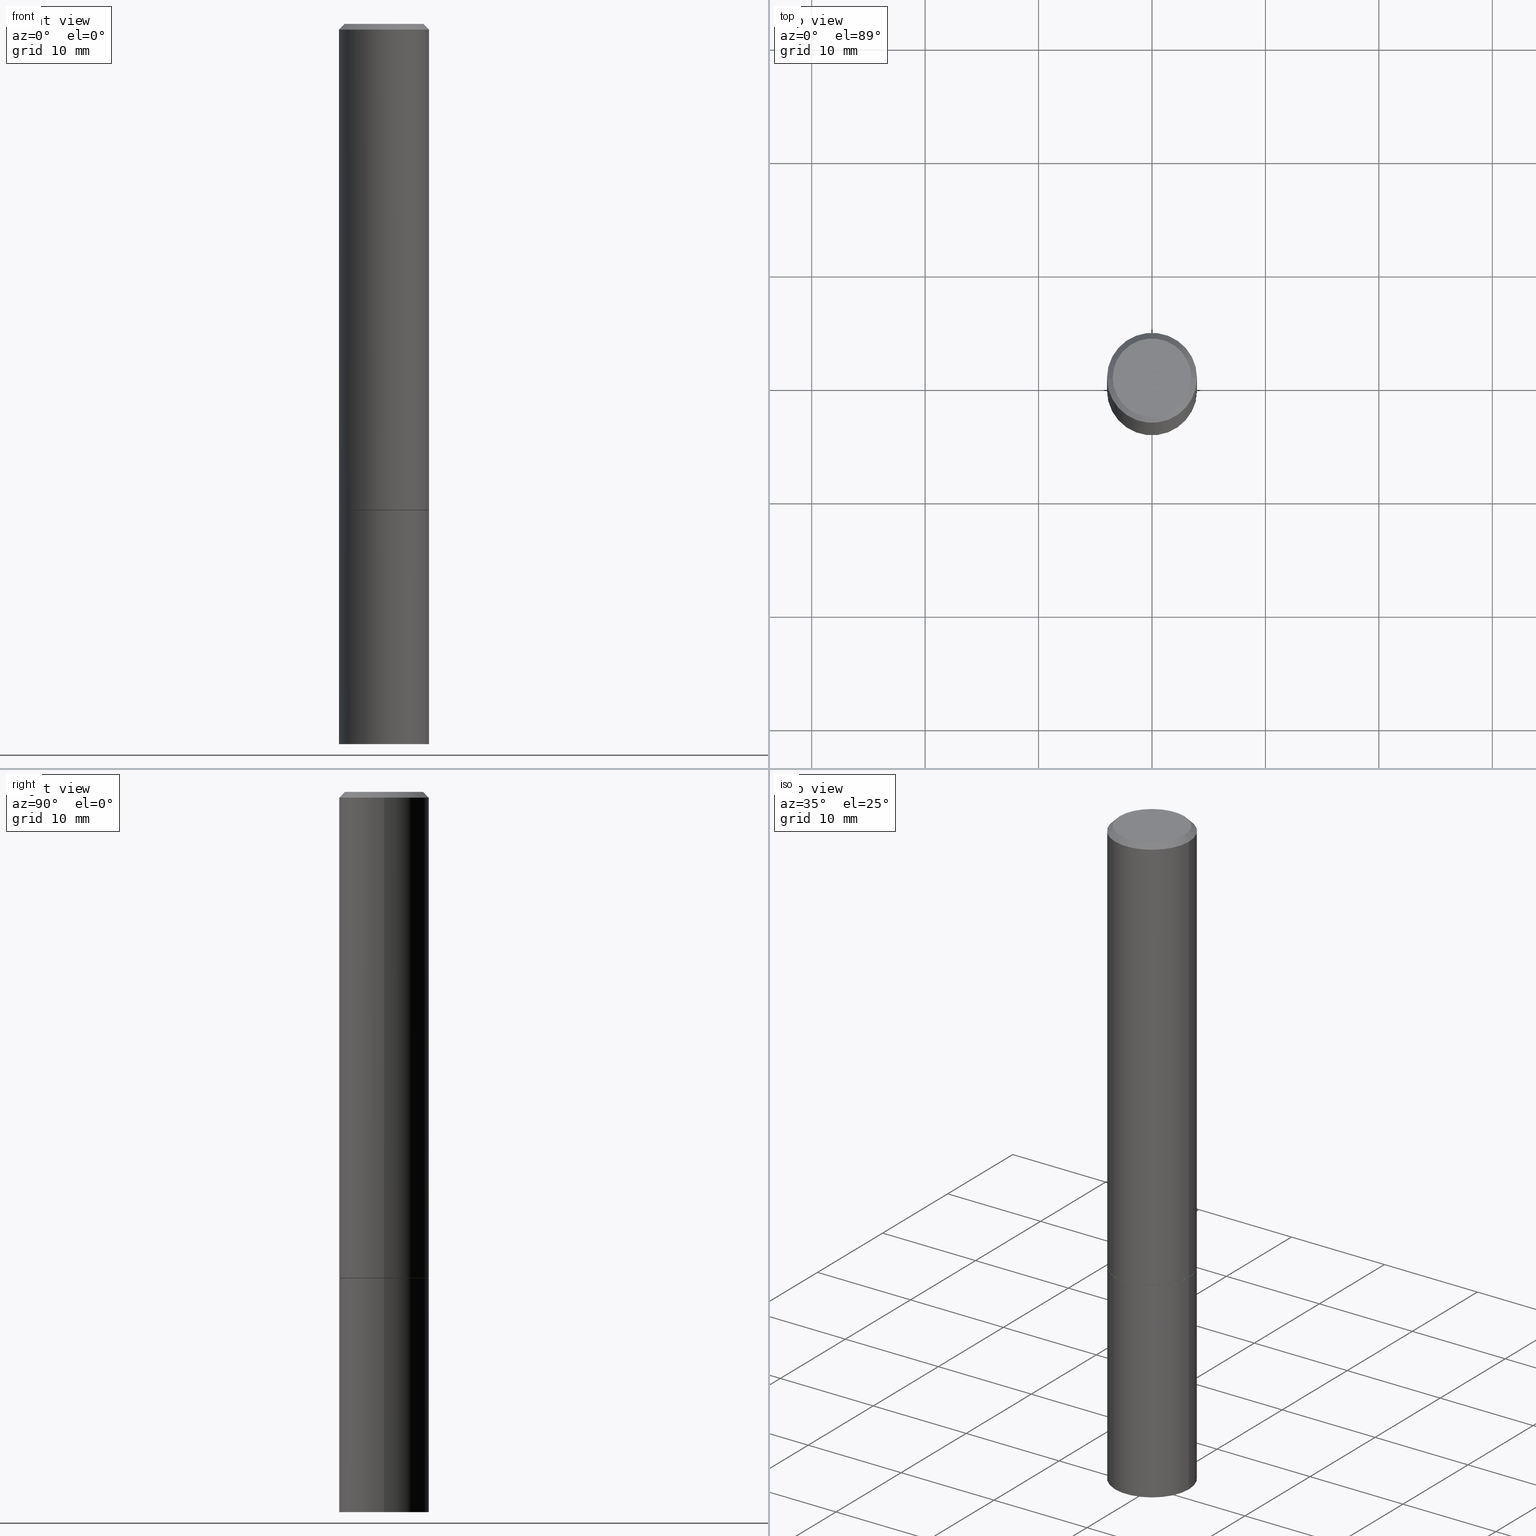
[diagram: canonical four-view strip — front | top / right | iso, engineering-drawing reading convention]
A machine part, canonical four-view strip (front | top / right | iso — engineering-drawing reading convention). The complete STEP part file that produces these views, byte-faithful:
ISO-10303-21;
HEADER;
FILE_DESCRIPTION (( 'STEP AP203' ),
    '1' );
FILE_NAME ('35483.STEP',
    '2024-02-27T18:47:16',
    ( '' ),
    ( '' ),
    'SwSTEP 2.0',
    'SolidWorks 2023',
    '' );
FILE_SCHEMA (( 'CONFIG_CONTROL_DESIGN' ));
ENDSEC;

DATA;
#1 = CARTESIAN_POINT ( 'NONE',  ( 4.127951344840510809E-29, -5.893620499967230340E-15, -1.688000000000000167 ) ) ;
#2 = DATE_AND_TIME ( #39, #178 ) ;
#3 = CARTESIAN_POINT ( 'NONE',  ( 6.113672015462842613E-29, -8.728703347107864943E-15, -2.500000000000000000 ) ) ;
#4 = DIRECTION ( 'NONE',  ( 0.000000000000000000, 0.000000000000000000, 1.000000000000000000 ) ) ;
#5 = AXIS2_PLACEMENT_3D ( 'NONE', #64, #94, #179 ) ;
#6 = APPROVAL_PERSON_ORGANIZATION ( #253, #298, #153 ) ;
#7 = APPROVAL_DATE_TIME ( #2, #298 ) ;
#8 = CARTESIAN_POINT ( 'NONE',  ( 0.1552499999999999991, -6.977725455678023499E-15, -1.688000000000000167 ) ) ;
#9 = APPROVAL_STATUS ( 'not_yet_approved' ) ;
#10 = CARTESIAN_POINT ( 'NONE',  ( 0.000000000000000000, 0.000000000000000000, 0.000000000000000000 ) ) ;
#11 = FACE_OUTER_BOUND ( 'NONE', #209, .T. ) ;
#12 = APPROVAL_PERSON_ORGANIZATION ( #256, #25, #92 ) ;
#13 = EDGE_LOOP ( 'NONE', ( #43, #190, #21, #270 ) ) ;
#14 = EDGE_CURVE ( 'NONE', #301, #157, #169, .T. ) ;
#15 = ORIENTED_EDGE ( 'NONE', *, *, #180, .T. ) ;
#16 = VECTOR ( 'NONE', #360, 39.37007874015748143 ) ;
#17 = LOCAL_TIME ( 13, 47, 16.00000000000000000, #124 ) ;
#18 = ORIENTED_EDGE ( 'NONE', *, *, #191, .F. ) ;
#19 = ORIENTED_EDGE ( 'NONE', *, *, #276, .F. ) ;
#20 = CARTESIAN_POINT ( 'NONE',  ( 0.1562500000000000000, -9.819791265496344905E-15, -2.500000000000000000 ) ) ;
#21 = ORIENTED_EDGE ( 'NONE', *, *, #364, .F. ) ;
#22 = CARTESIAN_POINT ( 'NONE',  ( 4.890937612370281041E-31, -6.982962677686302702E-17, -0.02000000000000003511 ) ) ;
#23 = AXIS2_PLACEMENT_3D ( 'NONE', #3, #260, #318 ) ;
#24 = DIRECTION ( 'NONE',  ( -2.445468806185136877E-29, 3.491481338843145188E-15, 1.000000000000000000 ) ) ;
#25 = APPROVAL ( #59, 'UNSPECIFIED' ) ;
#26 = DIRECTION ( 'NONE',  ( -1.000000000000000000, 6.982962677686266711E-15, 0.000000000000000000 ) ) ;
#27 = DIRECTION ( 'NONE',  ( 1.000000000000000000, -6.982962677686268288E-15, 0.000000000000000000 ) ) ;
#28 = DIRECTION ( 'NONE',  ( 1.000000000000000000, -6.982962677686269077E-15, 0.000000000000000000 ) ) ;
#29 = FACE_OUTER_BOUND ( 'NONE', #297, .T. ) ;
#30 = CLOSED_SHELL ( 'NONE', ( #246, #184, #350, #38 ) ) ;
#31 = PERSON_AND_ORGANIZATION ( #155, #330 ) ;
#32 = CARTESIAN_POINT ( 'NONE',  ( 0.1562499999999999167, -1.091087918388478385E-15, 7.619026212181144772E-30 ) ) ;
#33 = EDGE_CURVE ( 'NONE', #296, #74, #51, .T. ) ;
#34 = DIMENSIONAL_EXPONENTS ( 1.000000000000000000, 0.000000000000000000, 0.000000000000000000, 0.000000000000000000, 0.000000000000000000, 0.000000000000000000, 0.000000000000000000 ) ;
#35 = DIRECTION ( 'NONE',  ( 1.000000000000000000, 0.000000000000000000, 0.000000000000000000 ) ) ;
#36 = AXIS2_PLACEMENT_3D ( 'NONE', #235, #257, #347 ) ;
#37 = CALENDAR_DATE ( 2024, 27, 2 ) ;
#38 = ADVANCED_FACE ( 'NONE', ( #334 ), #105, .T. ) ;
#39 = CALENDAR_DATE ( 2024, 27, 2 ) ;
#40 = CARTESIAN_POINT ( 'NONE',  ( 0.1562499999999998057, -1.141782438928663330E-15, -0.02000000000000003511 ) ) ;
#41 = VECTOR ( 'NONE', #357, 39.37007874015748143 ) ;
#42 =( GEOMETRIC_REPRESENTATION_CONTEXT ( 3 ) GLOBAL_UNCERTAINTY_ASSIGNED_CONTEXT ( ( #134 ) ) GLOBAL_UNIT_ASSIGNED_CONTEXT ( ( #135, #331, #302 ) ) REPRESENTATION_CONTEXT ( 'NONE', 'WORKASPACE' ) );
#43 = ORIENTED_EDGE ( 'NONE', *, *, #191, .T. ) ;
#44 = PRODUCT_RELATED_PRODUCT_CATEGORY ( 'detail', '', ( #93 ) ) ;
#45 = ORIENTED_EDGE ( 'NONE', *, *, #67, .T. ) ;
#46 = ORIENTED_EDGE ( 'NONE', *, *, #264, .T. ) ;
#47 = AXIS2_PLACEMENT_3D ( 'NONE', #308, #55, #226 ) ;
#48 = VERTEX_POINT ( 'NONE', #165 ) ;
#49 = CARTESIAN_POINT ( 'NONE',  ( 4.890937612370281041E-31, -6.982962677686302702E-17, -0.02000000000000003511 ) ) ;
#50 = ORIENTED_EDGE ( 'NONE', *, *, #131, .F. ) ;
#51 = LINE ( 'NONE', #275, #41 ) ;
#52 = APPLICATION_PROTOCOL_DEFINITION ( 'international standard', 'config_control_design', 1994, #159 ) ;
#53 = EDGE_CURVE ( 'NONE', #301, #102, #127, .T. ) ;
#54 = CARTESIAN_POINT ( 'NONE',  ( 0.1362499999999998157, -1.038262645562516744E-15, 6.957025900226686667E-30 ) ) ;
#55 = DIRECTION ( 'NONE',  ( -2.445468806185136597E-29, 3.491481338843145583E-15, 1.000000000000000000 ) ) ;
#56 = PLANE ( 'NONE',  #177 ) ;
#57 = DIRECTION ( 'NONE',  ( 2.438088387897960049E-29, -3.491481338843145188E-15, -1.000000000000000000 ) ) ;
#58 = DIRECTION ( 'NONE',  ( 1.000000000000000000, -6.982962677686269077E-15, 0.000000000000000000 ) ) ;
#59 = APPROVAL_STATUS ( 'not_yet_approved' ) ;
#60 = DIRECTION ( 'NONE',  ( -2.445468806185136597E-29, 3.491481338843145583E-15, 1.000000000000000000 ) ) ;
#61 = AXIS2_PLACEMENT_3D ( 'NONE', #273, #198, #79 ) ;
#62 = LOCAL_TIME ( 13, 47, 16.00000000000000000, #321 ) ;
#63 = CARTESIAN_POINT ( 'NONE',  ( 0.000000000000000000, 0.000000000000000000, 0.000000000000000000 ) ) ;
#64 = CARTESIAN_POINT ( 'NONE',  ( 4.127951344840510809E-29, -5.893620499967230340E-15, -1.688000000000000167 ) ) ;
#65 = CYLINDRICAL_SURFACE ( 'NONE', #36, 0.1562500000000000000 ) ;
#66 = PERSON_AND_ORGANIZATION_ROLE ( 'classification_officer' ) ;
#67 = EDGE_CURVE ( 'NONE', #74, #160, #77, .T. ) ;
#68 = AXIS2_PLACEMENT_3D ( 'NONE', #203, #292, #147 ) ;
#69 = APPROVAL_PERSON_ORGANIZATION ( #344, #358, #313 ) ;
#70 = ORIENTED_EDGE ( 'NONE', *, *, #312, .F. ) ;
#71 = CIRCLE ( 'NONE', #103, 0.1562500000000000000 ) ;
#72 = ADVANCED_FACE ( 'NONE', ( #84 ), #281, .T. ) ;
#73 = ORIENTED_EDGE ( 'NONE', *, *, #259, .T. ) ;
#74 = VERTEX_POINT ( 'NONE', #139 ) ;
#75 = EDGE_LOOP ( 'NONE', ( #236, #98 ) ) ;
#76 = ADVANCED_FACE ( 'NONE', ( #29 ), #88, .T. ) ;
#77 = CIRCLE ( 'NONE', #121, 0.1562500000000000000 ) ;
#78 = ORIENTED_EDGE ( 'NONE', *, *, #195, .F. ) ;
#79 = DIRECTION ( 'NONE',  ( 1.000000000000000000, -6.982962677686268288E-15, 0.000000000000000000 ) ) ;
#80 = LINE ( 'NONE', #363, #336 ) ;
#81 = FACE_OUTER_BOUND ( 'NONE', #329, .T. ) ;
#82 = AXIS2_PLACEMENT_3D ( 'NONE', #251, #57, #279 ) ;
#83 = CARTESIAN_POINT ( 'NONE',  ( -0.1562500000000000000, -6.200938898912389918E-15, -2.500000000000000000 ) ) ;
#84 = FACE_OUTER_BOUND ( 'NONE', #13, .T. ) ;
#85 = CARTESIAN_POINT ( 'NONE',  ( 4.125505876034325766E-29, -5.890129018628387333E-15, -1.687000000000000055 ) ) ;
#86 = DIRECTION ( 'NONE',  ( -2.445468806185136597E-29, 3.491481338843145583E-15, 1.000000000000000000 ) ) ;
#87 = PERSON_AND_ORGANIZATION_ROLE ( 'creator' ) ;
#88 = CONICAL_SURFACE ( 'NONE', #262, 0.1562499999999998057, 0.7853981633974472798 ) ;
#89 = SECURITY_CLASSIFICATION_LEVEL ( 'unclassified' ) ;
#90 = PERSON_AND_ORGANIZATION ( #155, #330 ) ;
#91 = EDGE_CURVE ( 'NONE', #157, #187, #80, .T. ) ;
#92 = APPROVAL_ROLE ( '' ) ;
#93 = PRODUCT ( '35483', '35483', '', ( #228 ) ) ;
#94 = DIRECTION ( 'NONE',  ( -2.445468806185136597E-29, 3.491481338843145583E-15, 1.000000000000000000 ) ) ;
#95 = VERTEX_POINT ( 'NONE', #107 ) ;
#96 = ORIENTED_EDGE ( 'NONE', *, *, #67, .F. ) ;
#97 = AXIS2_PLACEMENT_3D ( 'NONE', #49, #277, #26 ) ;
#98 = ORIENTED_EDGE ( 'NONE', *, *, #204, .T. ) ;
#99 = CC_DESIGN_PERSON_AND_ORGANIZATION_ASSIGNMENT ( #90, #66, ( #230 ) ) ;
#100 = DIRECTION ( 'NONE',  ( 0.7071067811865232589, -2.468850131082003836E-15, 0.7071067811865715536 ) ) ;
#101 = ORIENTED_EDGE ( 'NONE', *, *, #241, .F. ) ;
#102 = VERTEX_POINT ( 'NONE', #249 ) ;
#103 = AXIS2_PLACEMENT_3D ( 'NONE', #225, #86, #58 ) ;
#104 = CC_DESIGN_APPROVAL ( #298, ( #316 ) ) ;
#105 = CYLINDRICAL_SURFACE ( 'NONE', #255, 0.1562500000000000000 ) ;
#106 = DIRECTION ( 'NONE',  ( -2.445468806185136597E-29, 3.491481338843145583E-15, 1.000000000000000000 ) ) ;
#107 = CARTESIAN_POINT ( 'NONE',  ( 0.1562500000000000000, -6.981216937016866506E-15, -1.687000000000000055 ) ) ;
#108 = EDGE_CURVE ( 'NONE', #349, #160, #227, .T. ) ;
#109 = DIRECTION ( 'NONE',  ( 1.000000000000000000, -6.982962677686269077E-15, 0.000000000000000000 ) ) ;
#110 = CARTESIAN_POINT ( 'NONE',  ( 4.890937612370281041E-31, -6.982962677686302702E-17, -0.02000000000000003511 ) ) ;
#111 = CARTESIAN_POINT ( 'NONE',  ( 0.000000000000000000, 0.000000000000000000, 0.000000000000000000 ) ) ;
#112 = AXIS2_PLACEMENT_3D ( 'NONE', #217, #365, #28 ) ;
#113 = DIRECTION ( 'NONE',  ( 2.438088387897960049E-29, -3.491481338843145188E-15, -1.000000000000000000 ) ) ;
#114 = CIRCLE ( 'NONE', #239, 0.1562500000000000000 ) ;
#115 = LENGTH_MEASURE_WITH_UNIT ( LENGTH_MEASURE( 0.02539999999999999897 ), #171 );
#116 = CC_DESIGN_PERSON_AND_ORGANIZATION_ASSIGNMENT ( #254, #342, ( #93 ) ) ;
#117 = DIRECTION ( 'NONE',  ( -2.445468806185136597E-29, 3.491481338843145583E-15, 1.000000000000000000 ) ) ;
#118 = COORDINATED_UNIVERSAL_TIME_OFFSET ( 5, 0, .BEHIND. ) ;
#119 = DIRECTION ( 'NONE',  ( 0.7071067811865467956, -7.319954787623254468E-15, -0.7071067811865482389 ) ) ;
#120 = APPROVAL_DATE_TIME ( #231, #358 ) ;
#121 = AXIS2_PLACEMENT_3D ( 'NONE', #1, #252, #311 ) ;
#122 = AXIS2_PLACEMENT_3D ( 'NONE', #63, #4, #35 ) ;
#123 = ADVANCED_FACE ( 'NONE', ( #314 ), #304, .F. ) ;
#124 = COORDINATED_UNIVERSAL_TIME_OFFSET ( 5, 0, .BEHIND. ) ;
#125 = DIRECTION ( 'NONE',  ( -2.445468806185136597E-29, 3.491481338843145583E-15, 1.000000000000000000 ) ) ;
#126 = SHAPE_DEFINITION_REPRESENTATION ( #152, #361 ) ;
#127 = CIRCLE ( 'NONE', #305, 0.1552499999999999991 ) ;
#128 = CIRCLE ( 'NONE', #274, 0.1562499999999998057 ) ;
#129 = ORIENTED_EDGE ( 'NONE', *, *, #53, .F. ) ;
#130 = ORIENTED_EDGE ( 'NONE', *, *, #14, .F. ) ;
#131 = EDGE_CURVE ( 'NONE', #160, #74, #71, .T. ) ;
#132 = ORIENTED_EDGE ( 'NONE', *, *, #333, .T. ) ;
#133 = ORIENTED_EDGE ( 'NONE', *, *, #289, .F. ) ;
#134 = UNCERTAINTY_MEASURE_WITH_UNIT (LENGTH_MEASURE( 1.000000000000000082E-05 ), #135, 'distance_accuracy_value', 'NONE');
#135 =( CONVERSION_BASED_UNIT ( 'INCH', #115 ) LENGTH_UNIT ( ) NAMED_UNIT ( #34 ) );
#136 = ORIENTED_EDGE ( 'NONE', *, *, #53, .T. ) ;
#137 = AXIS2_PLACEMENT_3D ( 'NONE', #110, #60, #173 ) ;
#138 = CYLINDRICAL_SURFACE ( 'NONE', #258, 0.1562499999999999167 ) ;
#139 = CARTESIAN_POINT ( 'NONE',  ( -0.1562500000000000000, -6.200938898912389918E-15, -1.688000000000000167 ) ) ;
#140 = CARTESIAN_POINT ( 'NONE',  ( 0.000000000000000000, 0.000000000000000000, 0.000000000000000000 ) ) ;
#141 = DIRECTION ( 'NONE',  ( -2.438088387897960049E-29, 3.491481338843145188E-15, 1.000000000000000000 ) ) ;
#142 = PLANE ( 'NONE',  #82 ) ;
#143 = DIRECTION ( 'NONE',  ( 1.000000000000000000, -6.982962677686266711E-15, 4.876176775795936353E-29 ) ) ;
#144 = AXIS2_PLACEMENT_3D ( 'NONE', #10, #125, #154 ) ;
#145 = DIRECTION ( 'NONE',  ( 2.438088387897960049E-29, -3.491481338843145188E-15, -1.000000000000000000 ) ) ;
#146 = COORDINATED_UNIVERSAL_TIME_OFFSET ( 5, 0, .BEHIND. ) ;
#147 = DIRECTION ( 'NONE',  ( 1.000000000000000000, -6.982962677686268288E-15, 0.000000000000000000 ) ) ;
#148 = DATE_AND_TIME ( #174, #62 ) ;
#149 = CIRCLE ( 'NONE', #144, 0.1362499999999998157 ) ;
#150 = LOCAL_TIME ( 13, 47, 16.00000000000000000, #146 ) ;
#151 = DATE_TIME_ROLE ( 'creation_date' ) ;
#152 = PRODUCT_DEFINITION_SHAPE ( 'NONE', 'NONE',  #170 ) ;
#153 = APPROVAL_ROLE ( '' ) ;
#154 = DIRECTION ( 'NONE',  ( 1.000000000000000000, -6.982962677686266711E-15, 4.876176775795935232E-29 ) ) ;
#155 = PERSON ( 'UNSPECIFIED', 'UNSPECIFIED', 'UNSPECIFIED', ('UNSPECIFIED'), ('UNSPECIFIED'), ('UNSPECIFIED') ) ;
#156 = ORIENTED_EDGE ( 'NONE', *, *, #195, .T. ) ;
#157 = VERTEX_POINT ( 'NONE', #222 ) ;
#158 = EDGE_CURVE ( 'NONE', #95, #267, #194, .T. ) ;
#159 = APPLICATION_CONTEXT ( 'configuration controlled 3d designs of mechanical parts and assemblies' ) ;
#160 = VERTEX_POINT ( 'NONE', #200 ) ;
#161 = VERTEX_POINT ( 'NONE', #54 ) ;
#162 = CARTESIAN_POINT ( 'NONE',  ( 4.890937612370281041E-31, -6.982962677686302702E-17, -0.02000000000000003511 ) ) ;
#163 = EDGE_LOOP ( 'NONE', ( #130, #136, #46, #70 ) ) ;
#164 = ADVANCED_FACE ( 'NONE', ( #81 ), #309, .F. ) ;
#165 = CARTESIAN_POINT ( 'NONE',  ( -0.1362499999999998157, 9.863434782231836346E-16, -6.775751096333130074E-30 ) ) ;
#166 = CONICAL_SURFACE ( 'NONE', #5, 0.1552499999999999991, 0.7853981633974141952 ) ;
#167 = CARTESIAN_POINT ( 'NONE',  ( 4.127951344840510809E-29, -5.893620499967230340E-15, -1.688000000000000167 ) ) ;
#168 = DIRECTION ( 'NONE',  ( -2.445468806185136597E-29, 3.491481338843145583E-15, 1.000000000000000000 ) ) ;
#169 = LINE ( 'NONE', #218, #290 ) ;
#170 = PRODUCT_DEFINITION ( 'UNKNOWN', '', #316, #213 ) ;
#171 =( LENGTH_UNIT ( ) NAMED_UNIT ( * ) SI_UNIT ( $, .METRE. ) );
#172 = DIRECTION ( 'NONE',  ( -2.445468806185136877E-29, 3.491481338843145188E-15, 1.000000000000000000 ) ) ;
#173 = DIRECTION ( 'NONE',  ( 1.000000000000000000, -6.982962677686265133E-15, 0.000000000000000000 ) ) ;
#174 = CALENDAR_DATE ( 2024, 27, 2 ) ;
#175 = DIRECTION ( 'NONE',  ( -0.7071067811865467956, 2.468850131082249172E-15, -0.7071067811865482389 ) ) ;
#176 = DATE_AND_TIME ( #317, #150 ) ;
#177 = AXIS2_PLACEMENT_3D ( 'NONE', #366, #113, #280 ) ;
#178 = LOCAL_TIME ( 13, 47, 16.00000000000000000, #283 ) ;
#179 = DIRECTION ( 'NONE',  ( 1.000000000000000000, -6.982962677686268288E-15, 0.000000000000000000 ) ) ;
#180 = EDGE_CURVE ( 'NONE', #187, #267, #202, .T. ) ;
#181 = APPLICATION_CONTEXT ( 'configuration controlled 3d designs of mechanical parts and assemblies' ) ;
#182 = EDGE_LOOP ( 'NONE', ( #328, #45 ) ) ;
#183 = CIRCLE ( 'NONE', #23, 0.1562500000000000000 ) ;
#184 = ADVANCED_FACE ( 'NONE', ( #196 ), #56, .T. ) ;
#185 = ORIENTED_EDGE ( 'NONE', *, *, #158, .F. ) ;
#186 = CARTESIAN_POINT ( 'NONE',  ( 0.1562499999999998057, -1.141782438928663330E-15, -0.02000000000000003511 ) ) ;
#187 = VERTEX_POINT ( 'NONE', #284 ) ;
#188 = CLOSED_SHELL ( 'NONE', ( #72, #293, #76, #319, #282, #221, #164, #123 ) ) ;
#189 = MANIFOLD_SOLID_BREP ( 'Body-Move/Copy2[1]', #30 ) ;
#190 = ORIENTED_EDGE ( 'NONE', *, *, #14, .T. ) ;
#191 = EDGE_CURVE ( 'NONE', #102, #301, #343, .T. ) ;
#192 = FACE_OUTER_BOUND ( 'NONE', #355, .T. ) ;
#193 = DIRECTION ( 'NONE',  ( 2.445468806185136597E-29, -3.491481338843145583E-15, -1.000000000000000000 ) ) ;
#194 = LINE ( 'NONE', #32, #315 ) ;
#195 = EDGE_CURVE ( 'NONE', #296, #349, #183, .T. ) ;
#196 = FACE_OUTER_BOUND ( 'NONE', #208, .T. ) ;
#197 = FACE_OUTER_BOUND ( 'NONE', #299, .T. ) ;
#198 = DIRECTION ( 'NONE',  ( -2.445468806185136597E-29, 3.491481338843145583E-15, 1.000000000000000000 ) ) ;
#199 = APPLICATION_PROTOCOL_DEFINITION ( 'international standard', 'config_control_design', 1994, #181 ) ;
#200 = CARTESIAN_POINT ( 'NONE',  ( 0.1562500000000000000, -6.984708418355709513E-15, -1.688000000000000167 ) ) ;
#201 = DATE_AND_TIME ( #37, #216 ) ;
#202 = CIRCLE ( 'NONE', #137, 0.1562499999999998057 ) ;
#203 = CARTESIAN_POINT ( 'NONE',  ( 4.127951344840510809E-29, -5.893620499967230340E-15, -1.688000000000000167 ) ) ;
#204 = EDGE_CURVE ( 'NONE', #161, #48, #149, .T. ) ;
#205 = PERSON_AND_ORGANIZATION ( #155, #330 ) ;
#206 = CIRCLE ( 'NONE', #306, 0.1362499999999998157 ) ;
#207 = CARTESIAN_POINT ( 'NONE',  ( -0.1562499999999998057, 1.021258291611614692E-15, -0.02000000000000003511 ) ) ;
#208 = EDGE_LOOP ( 'NONE', ( #19, #78 ) ) ;
#209 = EDGE_LOOP ( 'NONE', ( #327, #210, #50, #237 ) ) ;
#210 = ORIENTED_EDGE ( 'NONE', *, *, #33, .T. ) ;
#211 = EDGE_LOOP ( 'NONE', ( #353, #265, #348, #185 ) ) ;
#212 = ORIENTED_EDGE ( 'NONE', *, *, #204, .F. ) ;
#213 = DESIGN_CONTEXT ( 'detailed design', #181, 'design' ) ;
#214 = CC_DESIGN_PERSON_AND_ORGANIZATION_ASSIGNMENT ( #31, #320, ( #316 ) ) ;
#215 = AXIS2_PLACEMENT_3D ( 'NONE', #220, #145, #341 ) ;
#216 = LOCAL_TIME ( 13, 47, 16.00000000000000000, #118 ) ;
#217 = CARTESIAN_POINT ( 'NONE',  ( 6.113672015462842613E-29, -8.728703347107864943E-15, -2.500000000000000000 ) ) ;
#218 = CARTESIAN_POINT ( 'NONE',  ( -0.1552499999999999991, -4.790502902699674808E-15, -1.688000000000000167 ) ) ;
#219 = FACE_OUTER_BOUND ( 'NONE', #182, .T. ) ;
#220 = CARTESIAN_POINT ( 'NONE',  ( 9.514286648347523799E-16, 0.1362499999999998157, -4.757143324173778663E-16 ) ) ;
#221 = ADVANCED_FACE ( 'NONE', ( #345 ), #166, .T. ) ;
#222 = CARTESIAN_POINT ( 'NONE',  ( -0.1562500000000000000, -1.869756298077466803E-15, -1.687000000000000055 ) ) ;
#223 = AXIS2_PLACEMENT_3D ( 'NONE', #167, #141, #247 ) ;
#224 = DIRECTION ( 'NONE',  ( -2.445468806185136597E-29, 3.491481338843145583E-15, 1.000000000000000000 ) ) ;
#225 = CARTESIAN_POINT ( 'NONE',  ( 4.127951344840510809E-29, -5.893620499967230340E-15, -1.688000000000000167 ) ) ;
#226 = DIRECTION ( 'NONE',  ( 1.000000000000000000, -6.982962677686265133E-15, 4.876176775795935232E-29 ) ) ;
#227 = LINE ( 'NONE', #303, #16 ) ;
#228 = MECHANICAL_CONTEXT ( 'NONE', #159, 'mechanical' ) ;
#229 = APPROVAL_STATUS ( 'not_yet_approved' ) ;
#230 = SECURITY_CLASSIFICATION ( '', '', #89 ) ;
#231 = DATE_AND_TIME ( #285, #17 ) ;
#232 = CC_DESIGN_PERSON_AND_ORGANIZATION_ASSIGNMENT ( #205, #87, ( #316 ) ) ;
#233 = LINE ( 'NONE', #40, #324 ) ;
#234 = PERSON_AND_ORGANIZATION ( #155, #330 ) ;
#235 = CARTESIAN_POINT ( 'NONE',  ( 0.000000000000000000, 0.000000000000000000, 0.000000000000000000 ) ) ;
#236 = ORIENTED_EDGE ( 'NONE', *, *, #289, .T. ) ;
#237 = ORIENTED_EDGE ( 'NONE', *, *, #108, .F. ) ;
#238 = VECTOR ( 'NONE', #100, 39.37007874015748854 ) ;
#239 = AXIS2_PLACEMENT_3D ( 'NONE', #85, #168, #244 ) ;
#240 = ORIENTED_EDGE ( 'NONE', *, *, #312, .T. ) ;
#241 = EDGE_CURVE ( 'NONE', #161, #267, #233, .T. ) ;
#242 = ORIENTED_EDGE ( 'NONE', *, *, #108, .T. ) ;
#243 = CARTESIAN_POINT ( 'NONE',  ( 4.127951344840510809E-29, -5.893620499967230340E-15, -1.688000000000000167 ) ) ;
#244 = DIRECTION ( 'NONE',  ( 1.000000000000000000, -6.982962677686269077E-15, 0.000000000000000000 ) ) ;
#245 = DIRECTION ( 'NONE',  ( -1.000000000000000000, 6.982962677686266711E-15, 0.000000000000000000 ) ) ;
#246 = ADVANCED_FACE ( 'NONE', ( #11 ), #65, .T. ) ;
#247 = DIRECTION ( 'NONE',  ( 1.000000000000000000, -6.982962677686265922E-15, 4.876176775795935793E-29 ) ) ;
#248 = CARTESIAN_POINT ( 'NONE',  ( 4.125505876034325766E-29, -5.890129018628387333E-15, -1.687000000000000055 ) ) ;
#249 = CARTESIAN_POINT ( 'NONE',  ( 0.1552499999999999991, -6.977725455678023499E-15, -1.688000000000000167 ) ) ;
#250 = CC_DESIGN_SECURITY_CLASSIFICATION ( #230, ( #316 ) ) ;
#251 = CARTESIAN_POINT ( 'NONE',  ( 1.091087918388520392E-15, 0.1562499999999940881, -1.688000000000000611 ) ) ;
#252 = DIRECTION ( 'NONE',  ( -2.445468806185136597E-29, 3.491481338843145583E-15, 1.000000000000000000 ) ) ;
#253 = PERSON_AND_ORGANIZATION ( #155, #330 ) ;
#254 = PERSON_AND_ORGANIZATION ( #155, #330 ) ;
#255 = AXIS2_PLACEMENT_3D ( 'NONE', #332, #117, #143 ) ;
#256 = PERSON_AND_ORGANIZATION ( #155, #330 ) ;
#257 = DIRECTION ( 'NONE',  ( -2.445468806185136597E-29, 3.491481338843145583E-15, 1.000000000000000000 ) ) ;
#258 = AXIS2_PLACEMENT_3D ( 'NONE', #140, #300, #359 ) ;
#259 = EDGE_CURVE ( 'NONE', #48, #187, #286, .T. ) ;
#260 = DIRECTION ( 'NONE',  ( -2.445468806185136597E-29, 3.491481338843145583E-15, 1.000000000000000000 ) ) ;
#261 = PERSON_AND_ORGANIZATION_ROLE ( 'creator' ) ;
#262 = AXIS2_PLACEMENT_3D ( 'NONE', #22, #193, #245 ) ;
#263 = CIRCLE ( 'NONE', #294, 0.1562500000000000000 ) ;
#264 = EDGE_CURVE ( 'NONE', #102, #95, #288, .T. ) ;
#265 = ORIENTED_EDGE ( 'NONE', *, *, #91, .T. ) ;
#266 = ORIENTED_EDGE ( 'NONE', *, *, #33, .F. ) ;
#267 = VERTEX_POINT ( 'NONE', #186 ) ;
#268 = CIRCLE ( 'NONE', #112, 0.1562500000000000000 ) ;
#269 = CC_DESIGN_DATE_AND_TIME_ASSIGNMENT ( #176, #291, ( #230 ) ) ;
#270 = ORIENTED_EDGE ( 'NONE', *, *, #264, .F. ) ;
#271 = DIRECTION ( 'NONE',  ( 1.000000000000000000, -6.982962677686265133E-15, 0.000000000000000000 ) ) ;
#272 = EDGE_LOOP ( 'NONE', ( #266, #156, #242, #96 ) ) ;
#273 = CARTESIAN_POINT ( 'NONE',  ( 4.127951344840510809E-29, -5.893620499967230340E-15, -1.688000000000000167 ) ) ;
#274 = AXIS2_PLACEMENT_3D ( 'NONE', #162, #106, #271 ) ;
#275 = CARTESIAN_POINT ( 'NONE',  ( -0.1562500000000000000, 1.110223024625156540E-15, -7.685836078523291160E-30 ) ) ;
#276 = EDGE_CURVE ( 'NONE', #349, #296, #268, .T. ) ;
#277 = DIRECTION ( 'NONE',  ( 2.445468806185136597E-29, -3.491481338843145583E-15, -1.000000000000000000 ) ) ;
#278 = DIRECTION ( 'NONE',  ( -0.7071067811865232589, 7.493145998870265808E-15, 0.7071067811865715536 ) ) ;
#279 = DIRECTION ( 'NONE',  ( -1.000000000000000000, 6.982962677686265922E-15, -4.876176775795935793E-29 ) ) ;
#280 = DIRECTION ( 'NONE',  ( -1.000000000000000000, 6.982962677686265922E-15, -4.876176775795935793E-29 ) ) ;
#281 = CONICAL_SURFACE ( 'NONE', #61, 0.1552499999999999991, 0.7853981633974141952 ) ;
#282 = ADVANCED_FACE ( 'NONE', ( #192 ), #340, .T. ) ;
#283 = COORDINATED_UNIVERSAL_TIME_OFFSET ( 5, 0, .BEHIND. ) ;
#284 = CARTESIAN_POINT ( 'NONE',  ( -0.1562499999999998057, 1.021258291611614692E-15, -0.02000000000000003511 ) ) ;
#285 = CALENDAR_DATE ( 2024, 27, 2 ) ;
#286 = LINE ( 'NONE', #207, #351 ) ;
#287 = APPROVAL_DATE_TIME ( #148, #25 ) ;
#288 = LINE ( 'NONE', #8, #238 ) ;
#289 = EDGE_CURVE ( 'NONE', #48, #161, #206, .T. ) ;
#290 = VECTOR ( 'NONE', #278, 39.37007874015748854 ) ;
#291 = DATE_TIME_ROLE ( 'classification_date' ) ;
#292 = DIRECTION ( 'NONE',  ( -2.445468806185136597E-29, 3.491481338843145583E-15, 1.000000000000000000 ) ) ;
#293 = ADVANCED_FACE ( 'NONE', ( #362 ), #138, .T. ) ;
#294 = AXIS2_PLACEMENT_3D ( 'NONE', #248, #310, #109 ) ;
#295 = ORIENTED_EDGE ( 'NONE', *, *, #158, .T. ) ;
#296 = VERTEX_POINT ( 'NONE', #83 ) ;
#297 = EDGE_LOOP ( 'NONE', ( #212, #354, #132, #325 ) ) ;
#298 = APPROVAL ( #229, 'UNSPECIFIED' ) ;
#299 = EDGE_LOOP ( 'NONE', ( #101, #133, #73, #15 ) ) ;
#300 = DIRECTION ( 'NONE',  ( -2.445468806185136597E-29, 3.491481338843145583E-15, 1.000000000000000000 ) ) ;
#301 = VERTEX_POINT ( 'NONE', #356 ) ;
#302 =( NAMED_UNIT ( * ) SI_UNIT ( $, .STERADIAN. ) SOLID_ANGLE_UNIT ( ) );
#303 = CARTESIAN_POINT ( 'NONE',  ( 0.1562500000000000000, -1.091087918388479174E-15, 7.619026212181150377E-30 ) ) ;
#304 = PLANE ( 'NONE',  #215 ) ;
#305 = AXIS2_PLACEMENT_3D ( 'NONE', #243, #335, #27 ) ;
#306 = AXIS2_PLACEMENT_3D ( 'NONE', #111, #224, #337 ) ;
#307 = CONICAL_SURFACE ( 'NONE', #97, 0.1562499999999998057, 0.7853981633974472798 ) ;
#308 = CARTESIAN_POINT ( 'NONE',  ( 0.000000000000000000, 0.000000000000000000, 0.000000000000000000 ) ) ;
#309 = PLANE ( 'NONE',  #223 ) ;
#310 = DIRECTION ( 'NONE',  ( -2.445468806185136597E-29, 3.491481338843145583E-15, 1.000000000000000000 ) ) ;
#311 = DIRECTION ( 'NONE',  ( 1.000000000000000000, -6.982962677686269077E-15, 0.000000000000000000 ) ) ;
#312 = EDGE_CURVE ( 'NONE', #157, #95, #114, .T. ) ;
#313 = APPROVAL_ROLE ( '' ) ;
#314 = FACE_OUTER_BOUND ( 'NONE', #75, .T. ) ;
#315 = VECTOR ( 'NONE', #172, 39.37007874015748143 ) ;
#316 = PRODUCT_DEFINITION_FORMATION_WITH_SPECIFIED_SOURCE ( 'ANY', '', #93, .NOT_KNOWN. ) ;
#317 = CALENDAR_DATE ( 2024, 27, 2 ) ;
#318 = DIRECTION ( 'NONE',  ( 1.000000000000000000, -6.982962677686269077E-15, 0.000000000000000000 ) ) ;
#319 = ADVANCED_FACE ( 'NONE', ( #197 ), #307, .T. ) ;
#320 = PERSON_AND_ORGANIZATION_ROLE ( 'design_supplier' ) ;
#321 = COORDINATED_UNIVERSAL_TIME_OFFSET ( 5, 0, .BEHIND. ) ;
#322 = MANIFOLD_SOLID_BREP ( 'Body-Move/Copy2[2]', #188 ) ;
#323 = ORIENTED_EDGE ( 'NONE', *, *, #91, .F. ) ;
#324 = VECTOR ( 'NONE', #119, 39.37007874015748143 ) ;
#325 = ORIENTED_EDGE ( 'NONE', *, *, #259, .F. ) ;
#326 = CC_DESIGN_PERSON_AND_ORGANIZATION_ASSIGNMENT ( #234, #261, ( #170 ) ) ;
#327 = ORIENTED_EDGE ( 'NONE', *, *, #276, .T. ) ;
#328 = ORIENTED_EDGE ( 'NONE', *, *, #131, .T. ) ;
#329 = EDGE_LOOP ( 'NONE', ( #18, #129 ) ) ;
#330 = ORGANIZATION ( 'UNSPECIFIED', 'UNSPECIFIED', '' ) ;
#331 =( NAMED_UNIT ( * ) PLANE_ANGLE_UNIT ( ) SI_UNIT ( $, .RADIAN. ) );
#332 = CARTESIAN_POINT ( 'NONE',  ( 0.000000000000000000, 0.000000000000000000, 0.000000000000000000 ) ) ;
#333 = EDGE_CURVE ( 'NONE', #267, #187, #128, .T. ) ;
#334 = FACE_OUTER_BOUND ( 'NONE', #272, .T. ) ;
#335 = DIRECTION ( 'NONE',  ( -2.445468806185136597E-29, 3.491481338843145583E-15, 1.000000000000000000 ) ) ;
#336 = VECTOR ( 'NONE', #24, 39.37007874015748143 ) ;
#337 = DIRECTION ( 'NONE',  ( 1.000000000000000000, -6.982962677686266711E-15, 4.876176775795935232E-29 ) ) ;
#338 = CC_DESIGN_DATE_AND_TIME_ASSIGNMENT ( #201, #151, ( #170 ) ) ;
#339 = ORIENTED_EDGE ( 'NONE', *, *, #180, .F. ) ;
#340 = CYLINDRICAL_SURFACE ( 'NONE', #47, 0.1562499999999999167 ) ;
#341 = DIRECTION ( 'NONE',  ( -1.000000000000000000, 6.982962677686265922E-15, -4.876176775795935793E-29 ) ) ;
#342 = PERSON_AND_ORGANIZATION_ROLE ( 'design_owner' ) ;
#343 = CIRCLE ( 'NONE', #68, 0.1552499999999999991 ) ;
#344 = PERSON_AND_ORGANIZATION ( #155, #330 ) ;
#345 = FACE_OUTER_BOUND ( 'NONE', #163, .T. ) ;
#346 = CC_DESIGN_APPROVAL ( #25, ( #170 ) ) ;
#347 = DIRECTION ( 'NONE',  ( 1.000000000000000000, -6.982962677686266711E-15, 4.876176775795936353E-29 ) ) ;
#348 = ORIENTED_EDGE ( 'NONE', *, *, #333, .F. ) ;
#349 = VERTEX_POINT ( 'NONE', #20 ) ;
#350 = ADVANCED_FACE ( 'NONE', ( #219 ), #142, .F. ) ;
#351 = VECTOR ( 'NONE', #175, 39.37007874015748143 ) ;
#352 = CC_DESIGN_APPROVAL ( #358, ( #230 ) ) ;
#353 = ORIENTED_EDGE ( 'NONE', *, *, #364, .T. ) ;
#354 = ORIENTED_EDGE ( 'NONE', *, *, #241, .T. ) ;
#355 = EDGE_LOOP ( 'NONE', ( #323, #240, #295, #339 ) ) ;
#356 = CARTESIAN_POINT ( 'NONE',  ( -0.1552499999999999991, -4.785204448351452406E-15, -1.688000000000000167 ) ) ;
#357 = DIRECTION ( 'NONE',  ( -2.445468806185136877E-29, 3.491481338843145188E-15, 1.000000000000000000 ) ) ;
#358 = APPROVAL ( #9, 'UNSPECIFIED' ) ;
#359 = DIRECTION ( 'NONE',  ( 1.000000000000000000, -6.982962677686265133E-15, 4.876176775795935232E-29 ) ) ;
#360 = DIRECTION ( 'NONE',  ( -2.445468806185136877E-29, 3.491481338843145188E-15, 1.000000000000000000 ) ) ;
#361 = ADVANCED_BREP_SHAPE_REPRESENTATION ( '35483', ( #189, #322, #122 ), #42 ) ;
#362 = FACE_OUTER_BOUND ( 'NONE', #211, .T. ) ;
#363 = CARTESIAN_POINT ( 'NONE',  ( -0.1562499999999999167, 1.110223024625155949E-15, -7.685836078523285555E-30 ) ) ;
#364 = EDGE_CURVE ( 'NONE', #95, #157, #263, .T. ) ;
#365 = DIRECTION ( 'NONE',  ( -2.445468806185136597E-29, 3.491481338843145583E-15, 1.000000000000000000 ) ) ;
#366 = CARTESIAN_POINT ( 'NONE',  ( 1.091087918388540310E-15, 0.1562499999999912570, -2.500000000000000444 ) ) ;
ENDSEC;
END-ISO-10303-21;
